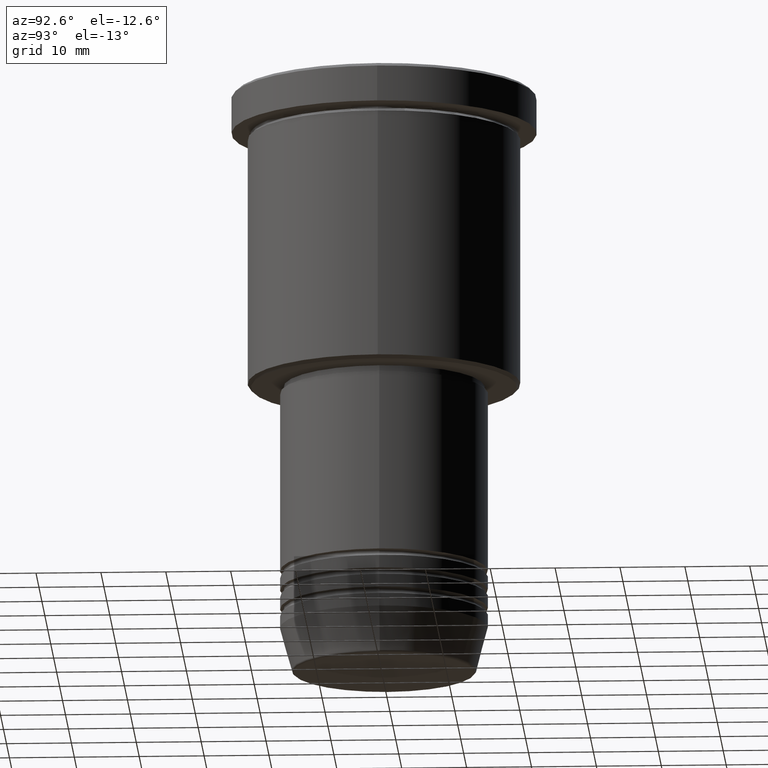
[diagram: clean part render]
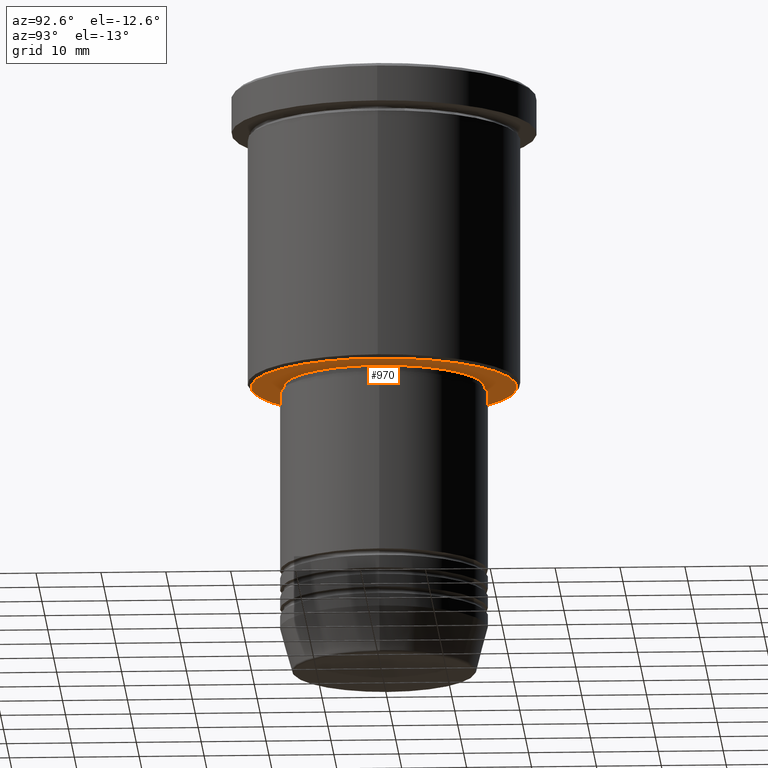
[diagram: same view with one face highlighted and labeled with its STEP entity id]
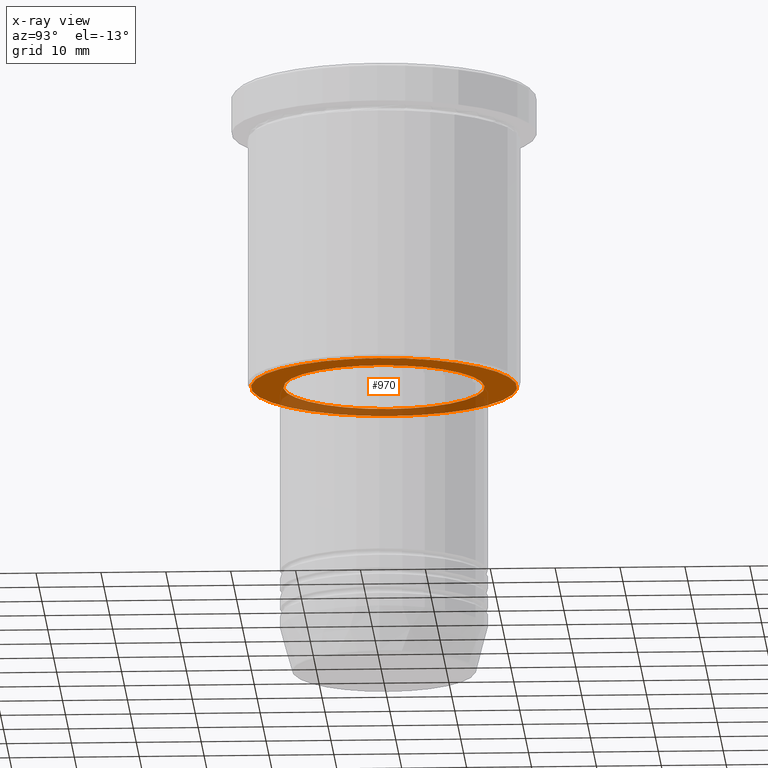
[diagram: x-ray of the same camera — body ghosted, the highlighted face saturated]
A machine part, auxiliary view. The second image highlights one B-rep face of the part: STEP entity #970.
The next image is the same camera in x-ray: the body ghosted, the highlighted face saturated — about 34% of this face is hidden behind the body in this view.
In plain terms, the highlighted planar face has unit normal (0, 0, -1).
Its self-contained STEP definition (entity closure, byte-faithful):
#12 = DIRECTION ( 'NONE',  ( -1.000000000000000000, 0.000000000000000000, 0.000000000000000000 ) ) ;
#59 = FACE_OUTER_BOUND ( 'NONE', #730, .T. ) ;
#65 = CIRCLE ( 'NONE', #945, 15.50000000000000000 ) ;
#181 = EDGE_CURVE ( 'NONE', #645, #913, #469, .T. ) ;
#182 = AXIS2_PLACEMENT_3D ( 'NONE', #877, #500, #1133 ) ;
#196 = DIRECTION ( 'NONE',  ( 1.000000000000000000, 0.000000000000000000, 0.000000000000000000 ) ) ;
#214 = CARTESIAN_POINT ( 'NONE',  ( 15.50000000000000000, 0.000000000000000000, -46.00000000000000000 ) ) ;
#253 = CARTESIAN_POINT ( 'NONE',  ( -15.50000000000000000, 1.898202538678397557E-15, -46.00000000000000000 ) ) ;
#262 = CARTESIAN_POINT ( 'NONE',  ( -20.49999999999999645, 2.541142108230757480E-15, -46.00000000000000000 ) ) ;
#286 = DIRECTION ( 'NONE',  ( -0.000000000000000000, -0.000000000000000000, 1.000000000000000000 ) ) ;
#293 = CARTESIAN_POINT ( 'NONE',  ( 0.000000000000000000, 0.000000000000000000, -46.00000000000000000 ) ) ;
#331 = CARTESIAN_POINT ( 'NONE',  ( 0.000000000000000000, 0.000000000000000000, -46.00000000000000000 ) ) ;
#380 = CARTESIAN_POINT ( 'NONE',  ( 0.000000000000000000, 0.000000000000000000, -46.00000000000000000 ) ) ;
#382 = EDGE_CURVE ( 'NONE', #1089, #715, #1078, .T. ) ;
#402 = PLANE ( 'NONE',  #182 ) ;
#407 = EDGE_CURVE ( 'NONE', #715, #1089, #1007, .T. ) ;
#469 = CIRCLE ( 'NONE', #1045, 15.50000000000000000 ) ;
#500 = DIRECTION ( 'NONE',  ( 0.000000000000000000, 0.000000000000000000, -1.000000000000000000 ) ) ;
#534 = ORIENTED_EDGE ( 'NONE', *, *, #557, .T. ) ;
#537 = ORIENTED_EDGE ( 'NONE', *, *, #181, .T. ) ;
#557 = EDGE_CURVE ( 'NONE', #913, #645, #65, .T. ) ;
#599 = DIRECTION ( 'NONE',  ( 1.000000000000000000, 0.000000000000000000, 0.000000000000000000 ) ) ;
#645 = VERTEX_POINT ( 'NONE', #253 ) ;
#666 = DIRECTION ( 'NONE',  ( 0.000000000000000000, 0.000000000000000000, -1.000000000000000000 ) ) ;
#715 = VERTEX_POINT ( 'NONE', #262 ) ;
#730 = EDGE_LOOP ( 'NONE', ( #925, #842 ) ) ;
#775 = DIRECTION ( 'NONE',  ( -0.000000000000000000, -0.000000000000000000, 1.000000000000000000 ) ) ;
#842 = ORIENTED_EDGE ( 'NONE', *, *, #407, .T. ) ;
#877 = CARTESIAN_POINT ( 'NONE',  ( 0.000000000000000000, 21.00000000000000000, -46.00000000000000000 ) ) ;
#913 = VERTEX_POINT ( 'NONE', #214 ) ;
#925 = ORIENTED_EDGE ( 'NONE', *, *, #382, .T. ) ;
#937 = DIRECTION ( 'NONE',  ( 0.000000000000000000, 0.000000000000000000, -1.000000000000000000 ) ) ;
#945 = AXIS2_PLACEMENT_3D ( 'NONE', #331, #775, #599 ) ;
#970 = ADVANCED_FACE ( 'NONE', ( #59, #1147 ), #402, .T. ) ;
#990 = CARTESIAN_POINT ( 'NONE',  ( 20.49999999999999645, 0.000000000000000000, -46.00000000000000000 ) ) ;
#1007 = CIRCLE ( 'NONE', #1098, 20.49999999999999645 ) ;
#1045 = AXIS2_PLACEMENT_3D ( 'NONE', #380, #286, #196 ) ;
#1047 = AXIS2_PLACEMENT_3D ( 'NONE', #1112, #937, #12 ) ;
#1078 = CIRCLE ( 'NONE', #1047, 20.49999999999999645 ) ;
#1087 = EDGE_LOOP ( 'NONE', ( #534, #537 ) ) ;
#1089 = VERTEX_POINT ( 'NONE', #990 ) ;
#1098 = AXIS2_PLACEMENT_3D ( 'NONE', #293, #666, #1106 ) ;
#1106 = DIRECTION ( 'NONE',  ( -1.000000000000000000, 0.000000000000000000, 0.000000000000000000 ) ) ;
#1112 = CARTESIAN_POINT ( 'NONE',  ( 0.000000000000000000, 0.000000000000000000, -46.00000000000000000 ) ) ;
#1133 = DIRECTION ( 'NONE',  ( -1.000000000000000000, 0.000000000000000000, -0.000000000000000000 ) ) ;
#1147 = FACE_BOUND ( 'NONE', #1087, .T. ) ;